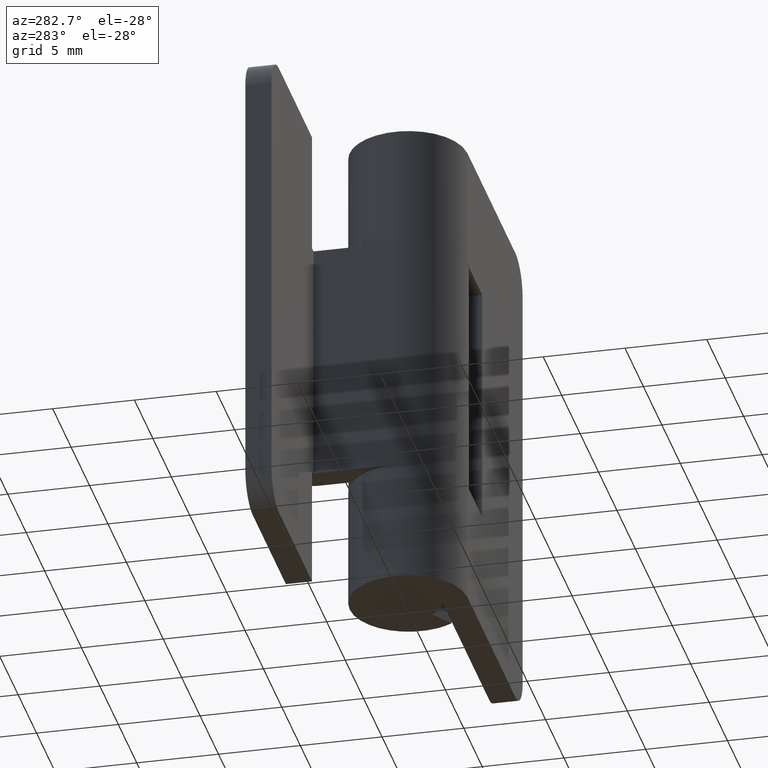
[diagram: clean part render]
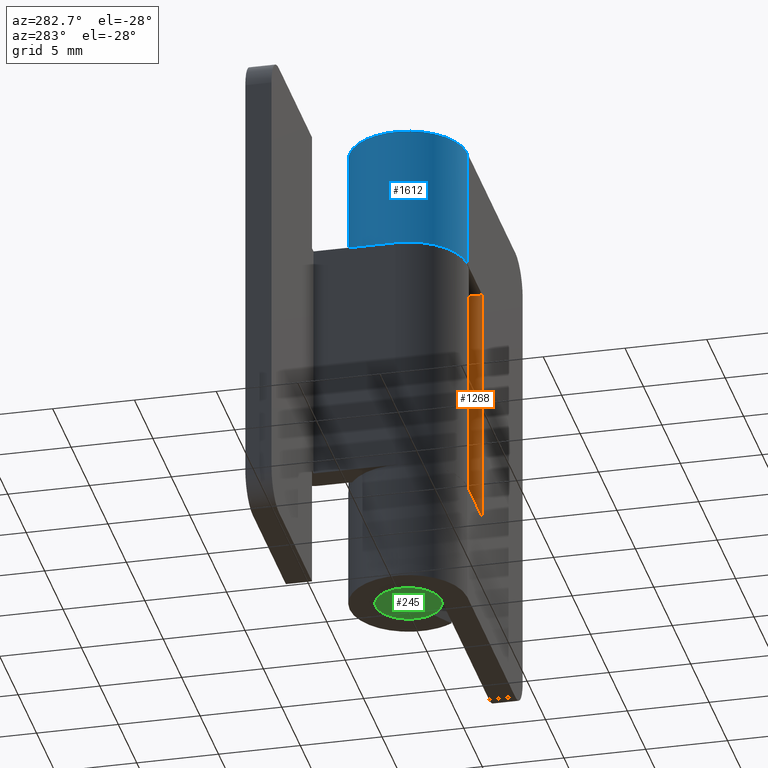
[diagram: same view with three faces highlighted in distinct colors, each labeled with its STEP entity id]
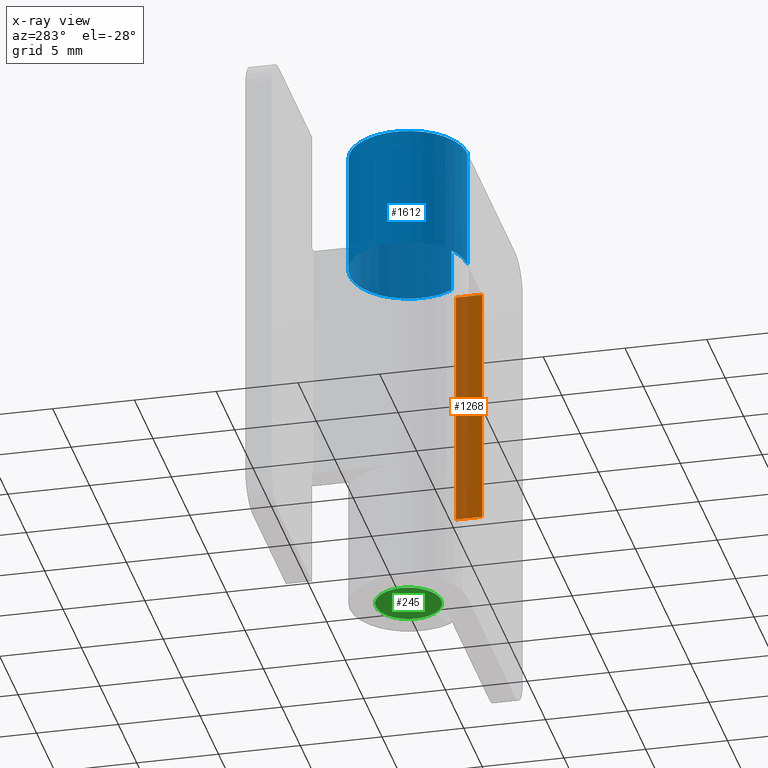
[diagram: x-ray of the same camera — body ghosted, the three highlighted faces saturated]
A machine part, auxiliary view with three faces highlighted in distinct colors.
The next image is the same camera in x-ray (body ghosted, the three faces saturated) — at least one of them is partly hidden behind the body in this view.
Their STEP definitions:

[orange] entity #1268 — the highlighted face is a freeform B-spline surface patch.
#1098=CARTESIAN_POINT('',(3.999999999999901,-3.599998000000000,7.500000000000000));
#1099=VERTEX_POINT('',#1098);
#1107=CARTESIAN_POINT('',(3.999999999999901,-2.0,7.500000000000000));
#1108=VERTEX_POINT('',#1107);
#1109=CARTESIAN_POINT('',(3.999999999999901,-2.0,7.500000000000000));
#1110=CARTESIAN_POINT('',(3.999999999999901,-3.599998000000000,7.500000000000000));
#1111=QUASI_UNIFORM_CURVE('',1,(#1109,#1110),.UNSPECIFIED.,.F.,.U.);
#1112=EDGE_CURVE('',#1108,#1099,#1111,.T.);
#1227=CARTESIAN_POINT('',(3.999999999999901,-2.0,22.500000000000000));
#1228=VERTEX_POINT('',#1227);
#1234=CARTESIAN_POINT('',(3.999999999999901,-3.599998000000000,22.500000000000000));
#1235=VERTEX_POINT('',#1234);
#1236=CARTESIAN_POINT('',(3.999999999999901,-2.0,22.500000000000000));
#1237=CARTESIAN_POINT('',(3.999999999999901,-3.599998000000000,22.500000000000000));
#1238=QUASI_UNIFORM_CURVE('',1,(#1236,#1237),.UNSPECIFIED.,.F.,.U.);
#1239=EDGE_CURVE('',#1228,#1235,#1238,.T.);
#1249=CARTESIAN_POINT('',(3.999999999999901,-3.679917896998894,6.750750029072910));
#1250=CARTESIAN_POINT('',(3.999999999999901,-3.679917896998894,23.249250373258441));
#1251=CARTESIAN_POINT('',(3.999999999999901,-1.920080060085816,6.750750029072910));
#1252=CARTESIAN_POINT('',(3.999999999999901,-1.920080060085816,23.249250373258441));
#1253=B_SPLINE_SURFACE_WITH_KNOTS('',1,1,((#1249,#1251),(#1250,#1252)),.UNSPECIFIED.,.F.,.F.,.U.,(2,2),(2,2),(0.0,16.498500344185530),(0.041708334948495,0.958291687403247),.UNSPECIFIED.);
#1254=CARTESIAN_POINT('',(3.999999999999901,-2.0,22.500000000000000));
#1255=CARTESIAN_POINT('',(3.999999999999901,-2.0,7.500000000000000));
#1256=QUASI_UNIFORM_CURVE('',1,(#1254,#1255),.UNSPECIFIED.,.F.,.U.);
#1257=EDGE_CURVE('',#1228,#1108,#1256,.T.);
#1258=ORIENTED_EDGE('',*,*,#1257,.T.);
#1259=ORIENTED_EDGE('',*,*,#1112,.T.);
#1260=CARTESIAN_POINT('',(3.999999999999901,-3.599998000000000,22.500000000000000));
#1261=CARTESIAN_POINT('',(3.999999999999901,-3.599998000000000,7.500000000000000));
#1262=QUASI_UNIFORM_CURVE('',1,(#1260,#1261),.UNSPECIFIED.,.F.,.U.);
#1263=EDGE_CURVE('',#1235,#1099,#1262,.T.);
#1264=ORIENTED_EDGE('',*,*,#1263,.F.);
#1265=ORIENTED_EDGE('',*,*,#1239,.F.);
#1266=EDGE_LOOP('',(#1258,#1259,#1264,#1265));
#1267=FACE_OUTER_BOUND('',#1266,.T.);
#1268=ADVANCED_FACE('',(#1267),#1253,.T.);

[blue] entity #1612 — the highlighted face is a freeform B-spline surface patch.
#1176=CARTESIAN_POINT('',(3.026136150274790,-1.950000000000000,22.500000000000000));
#1177=VERTEX_POINT('',#1176);
#1178=CARTESIAN_POINT('',(-0.000000188495562,-3.599998000000000,22.500000000000000));
#1179=VERTEX_POINT('',#1178);
#1180=CARTESIAN_POINT('',(3.026136150274790,-1.950000000000000,22.500000000000000));
#1181=CARTESIAN_POINT('',(4.541419272439725,0.401512951191054,22.500000000000000));
#1182=CARTESIAN_POINT('',(2.637063629886368,2.450691819043220,22.500000000000000));
#1183=CARTESIAN_POINT('',(0.732707987333009,4.499870686895386,22.500000000000000));
#1184=CARTESIAN_POINT('',(-1.723368711214479,3.160697170973537,22.500000000000000));
#1185=CARTESIAN_POINT('',(-4.179445409761966,1.821523655051689,22.500000000000000));
#1186=CARTESIAN_POINT('',(-3.488445681127195,-0.889236386657087,22.500000000000000));
#1187=CARTESIAN_POINT('',(-2.797445952492425,-3.599996428365866,22.500000000000000));
#1188=CARTESIAN_POINT('',(-0.000000188495562,-3.599998000000000,22.500000000000000));
#1196=(BOUNDED_CURVE()B_SPLINE_CURVE(2,(#1180,#1181,#1182,#1183,#1184,#1185,#1186,#1187,#1188),.UNSPECIFIED.,.F.,.U.)B_SPLINE_CURVE_WITH_KNOTS((3,2,2,2,3),(0.0,0.250000000000000,0.500000000000000,0.750000000000000,1.0),.UNSPECIFIED.)CURVE()GEOMETRIC_REPRESENTATION_ITEM()RATIONAL_B_SPLINE_CURVE((1.0,0.789623643958973,1.0,0.789623643958973,1.0,0.789623643958973,1.0,0.789623643958973,1.0))REPRESENTATION_ITEM(''));
#1197=EDGE_CURVE('',#1177,#1179,#1196,.T.);
#1344=CARTESIAN_POINT('',(-0.000000188495562,-3.600000000000000,30.0));
#1345=VERTEX_POINT('',#1344);
#1380=CARTESIAN_POINT('',(3.026136150274790,-1.950000000000000,30.0));
#1381=VERTEX_POINT('',#1380);
#1387=CARTESIAN_POINT('',(-0.000000188495561,-3.599999999999995,30.0));
#1388=CARTESIAN_POINT('',(-2.797445952492526,-3.599999853526076,30.0));
#1389=CARTESIAN_POINT('',(-3.488445681127340,-0.889239410858521,30.0));
#1390=CARTESIAN_POINT('',(-4.179445409762153,1.821521031809033,30.0));
#1391=CARTESIAN_POINT('',(-1.723368711214574,3.160696170973512,30.0));
#1392=CARTESIAN_POINT('',(0.732707987333006,4.499871310137992,30.0));
#1393=CARTESIAN_POINT('',(2.637063629886417,2.450692843244595,30.0));
#1394=CARTESIAN_POINT('',(4.541419272439828,0.401514376351199,30.0));
#1395=CARTESIAN_POINT('',(3.026136150274799,-1.950000000000004,30.0));
#1403=(BOUNDED_CURVE()B_SPLINE_CURVE(2,(#1387,#1388,#1389,#1390,#1391,#1392,#1393,#1394,#1395),.UNSPECIFIED.,.F.,.U.)B_SPLINE_CURVE_WITH_KNOTS((3,2,2,2,3),(0.0,0.250000000000000,0.500000000000000,0.750000000000000,1.0),.UNSPECIFIED.)CURVE()GEOMETRIC_REPRESENTATION_ITEM()RATIONAL_B_SPLINE_CURVE((1.0,0.789623643958971,1.0,0.789623643958971,1.0,0.789623643958971,1.0,0.789623643958971,1.0))REPRESENTATION_ITEM(''));
#1404=EDGE_CURVE('',#1345,#1381,#1403,.T.);
#1531=CARTESIAN_POINT('',(-0.000000188495562,-3.600000000000000,30.0));
#1532=CARTESIAN_POINT('',(-0.000000188495562,-3.599998000000000,22.500000000000000));
#1533=QUASI_UNIFORM_CURVE('',1,(#1531,#1532),.UNSPECIFIED.,.F.,.U.);
#1534=EDGE_CURVE('',#1345,#1179,#1533,.T.);
#1580=CARTESIAN_POINT('',(2.974054119795179,-2.028546793280675,30.187500000000000));
#1581=CARTESIAN_POINT('',(2.974054119795179,-2.028546793280675,22.307812500000001));
#1582=CARTESIAN_POINT('',(5.494053900480766,1.666026955008472,30.187500000000007));
#1583=CARTESIAN_POINT('',(5.494053900480766,1.666026955008472,22.307812500000001));
#1584=CARTESIAN_POINT('',(1.346476612783839,3.338712436138541,30.187500000000000));
#1585=CARTESIAN_POINT('',(1.346476612783839,3.338712436138541,22.307812500000001));
#1586=CARTESIAN_POINT('',(-2.801100674913086,5.011397917268609,30.187500000000007));
#1587=CARTESIAN_POINT('',(-2.801100674913086,5.011397917268609,22.307812500000001));
#1588=CARTESIAN_POINT('',(-3.549265622544154,0.602257038668912,30.187500000000000));
#1589=CARTESIAN_POINT('',(-3.549265622544154,0.602257038668912,22.307812500000001));
#1590=CARTESIAN_POINT('',(-4.297430570175223,-3.806883839930786,30.187500000000007));
#1591=CARTESIAN_POINT('',(-4.297430570175223,-3.806883839930786,22.307812500000001));
#1592=CARTESIAN_POINT('',(0.169760946053471,-3.595995164234098,30.187500000000000));
#1593=CARTESIAN_POINT('',(0.169760946053471,-3.595995164234098,22.307812500000001));
#1601=(BOUNDED_SURFACE()B_SPLINE_SURFACE(1,2,((#1580,#1582,#1584,#1586,#1588,#1590,#1592),(#1581,#1583,#1585,#1587,#1589,#1591,#1593)),.UNSPECIFIED.,.F.,.F.,.U.)B_SPLINE_SURFACE_WITH_KNOTS((2,2),(3,2,2,3),(0.0,7.879687499999999),(0.0,6.894174354837887,13.788348709675770,20.682523064513660),.UNSPECIFIED.)GEOMETRIC_REPRESENTATION_ITEM()RATIONAL_B_SPLINE_SURFACE(((1.0,0.627057105746662,1.0,0.627057105746662,1.0,0.627057105746662,1.0),(1.0,0.627057105746662,1.0,0.627057105746662,1.0,0.627057105746662,1.0)))REPRESENTATION_ITEM('')SURFACE());
#1602=CARTESIAN_POINT('',(3.026136150274790,-1.950000000000000,30.0));
#1603=CARTESIAN_POINT('',(3.026136150274790,-1.950000000000000,22.500000000000000));
#1604=QUASI_UNIFORM_CURVE('',1,(#1602,#1603),.UNSPECIFIED.,.F.,.U.);
#1605=EDGE_CURVE('',#1381,#1177,#1604,.T.);
#1606=ORIENTED_EDGE('',*,*,#1605,.T.);
#1607=ORIENTED_EDGE('',*,*,#1197,.T.);
#1608=ORIENTED_EDGE('',*,*,#1534,.F.);
#1609=ORIENTED_EDGE('',*,*,#1404,.T.);
#1610=EDGE_LOOP('',(#1606,#1607,#1608,#1609));
#1611=FACE_OUTER_BOUND('',#1610,.T.);
#1612=ADVANCED_FACE('',(#1611),#1601,.T.);

[green] entity #245 — the highlighted face is a freeform B-spline surface patch.
#70=CARTESIAN_POINT('',(0.236068469328979,-1.986019052725495,-1.703657E-015));
#71=VERTEX_POINT('',#70);
#72=CARTESIAN_POINT('',(-2.0,0.0,0.0));
#73=VERTEX_POINT('',#72);
#74=CARTESIAN_POINT('',(0.236068469328979,-1.986019052725495,-1.703657E-015));
#75=CARTESIAN_POINT('',(0.118448239319446,-2.000000000000000,0.0));
#76=CARTESIAN_POINT('',(0.0,-2.0,0.0));
#77=CARTESIAN_POINT('',(-2.000000000000000,-2.000000000000000,0.0));
#78=CARTESIAN_POINT('',(-2.0,0.0,0.0));
#86=(BOUNDED_CURVE()B_SPLINE_CURVE(2,(#74,#75,#76,#77,#78),.UNSPECIFIED.,.F.,.U.)B_SPLINE_CURVE_WITH_KNOTS((3,2,3),(0.229562473513013,0.250000000000000,0.500000000000000),.UNSPECIFIED.)CURVE()GEOMETRIC_REPRESENTATION_ITEM()RATIONAL_B_SPLINE_CURVE((0.956026754182728,0.976055948330564,1.0,0.707106781186548,1.0))REPRESENTATION_ITEM(''));
#87=EDGE_CURVE('',#71,#73,#86,.T.);
#128=CARTESIAN_POINT('',(-0.122093390652916,1.996269822430129,7.049916E-015));
#129=VERTEX_POINT('',#128);
#135=CARTESIAN_POINT('',(-2.0,0.0,0.0));
#136=CARTESIAN_POINT('',(-2.000000000000000,1.881415616509825,0.0));
#137=CARTESIAN_POINT('',(-0.122093390652916,1.996269822430129,7.049916E-015));
#145=(BOUNDED_CURVE()B_SPLINE_CURVE(2,(#135,#136,#137),.UNSPECIFIED.,.F.,.U.)B_SPLINE_CURVE_WITH_KNOTS((3,3),(0.500000000000000,0.739333281048922),.UNSPECIFIED.)CURVE()GEOMETRIC_REPRESENTATION_ITEM()RATIONAL_B_SPLINE_CURVE((1.0,0.719603619777586,0.976072724938143))REPRESENTATION_ITEM(''));
#146=EDGE_CURVE('',#73,#129,#145,.T.);
#169=CARTESIAN_POINT('',(2.0,0.0,0.0));
#170=VERTEX_POINT('',#169);
#171=CARTESIAN_POINT('',(2.0,0.0,0.0));
#172=CARTESIAN_POINT('',(2.000000000000000,-1.776349051874881,0.0));
#173=CARTESIAN_POINT('',(0.236068469328979,-1.986019052725495,-1.703657E-015));
#181=(BOUNDED_CURVE()B_SPLINE_CURVE(2,(#171,#172,#173),.UNSPECIFIED.,.F.,.U.)B_SPLINE_CURVE_WITH_KNOTS((3,3),(0.0,0.229562473513013),.UNSPECIFIED.)CURVE()GEOMETRIC_REPRESENTATION_ITEM()RATIONAL_B_SPLINE_CURVE((1.0,0.731050832855983,0.956026754182728))REPRESENTATION_ITEM(''));
#182=EDGE_CURVE('',#170,#71,#181,.T.);
#184=CARTESIAN_POINT('',(-0.122093390652916,1.996269822430129,7.049916E-015));
#185=CARTESIAN_POINT('',(-0.061103677218059,2.000000000000000,0.0));
#186=CARTESIAN_POINT('',(0.0,2.0,0.0));
#187=CARTESIAN_POINT('',(2.000000000000000,2.000000000000000,0.0));
#188=CARTESIAN_POINT('',(2.0,0.0,0.0));
#196=(BOUNDED_CURVE()B_SPLINE_CURVE(2,(#184,#185,#186,#187,#188),.UNSPECIFIED.,.F.,.U.)B_SPLINE_CURVE_WITH_KNOTS((3,2,3),(0.739333281048922,0.750000000000000,1.0),.UNSPECIFIED.)CURVE()GEOMETRIC_REPRESENTATION_ITEM()RATIONAL_B_SPLINE_CURVE((0.976072724938143,0.987503161408961,1.0,0.707106781186548,1.0))REPRESENTATION_ITEM(''));
#197=EDGE_CURVE('',#129,#170,#196,.T.);
#234=CARTESIAN_POINT('',(-2.199799992247224,-2.199763729070981,0.0));
#235=CARTESIAN_POINT('',(2.199800099535584,-2.199763729070981,0.0));
#236=CARTESIAN_POINT('',(-2.199799992247224,2.199751319383939,0.0));
#237=CARTESIAN_POINT('',(2.199800099535584,2.199751319383939,0.0));
#238=B_SPLINE_SURFACE_WITH_KNOTS('',1,1,((#234,#236),(#235,#237)),.UNSPECIFIED.,.F.,.F.,.U.,(2,2),(2,2),(0.0,4.399600091782808),(0.0,4.399515048454920),.UNSPECIFIED.);
#239=ORIENTED_EDGE('',*,*,#182,.T.);
#240=ORIENTED_EDGE('',*,*,#87,.T.);
#241=ORIENTED_EDGE('',*,*,#146,.T.);
#242=ORIENTED_EDGE('',*,*,#197,.T.);
#243=EDGE_LOOP('',(#239,#240,#241,#242));
#244=FACE_OUTER_BOUND('',#243,.T.);
#245=ADVANCED_FACE('',(#244),#238,.F.);